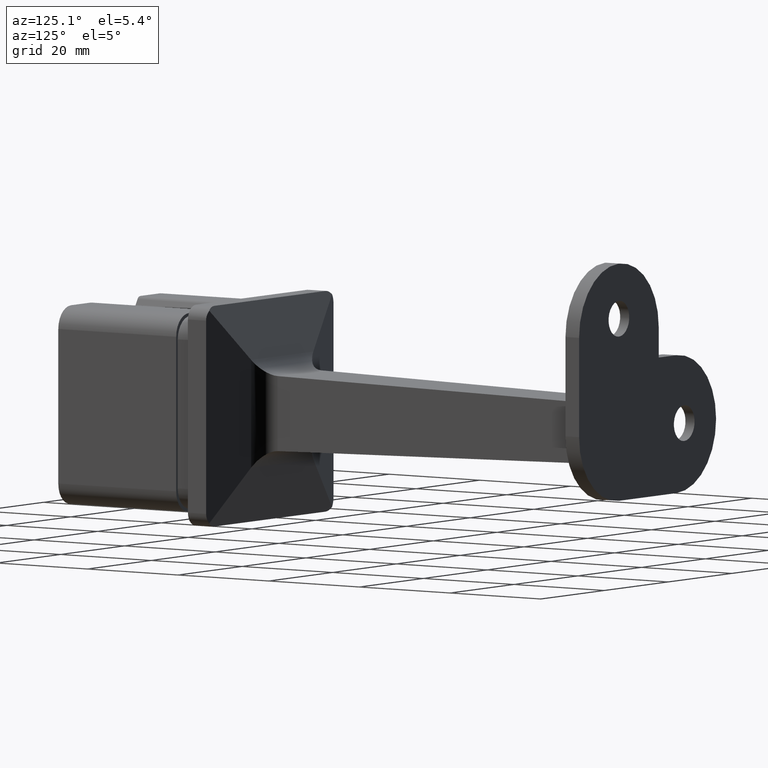
[diagram: clean part render]
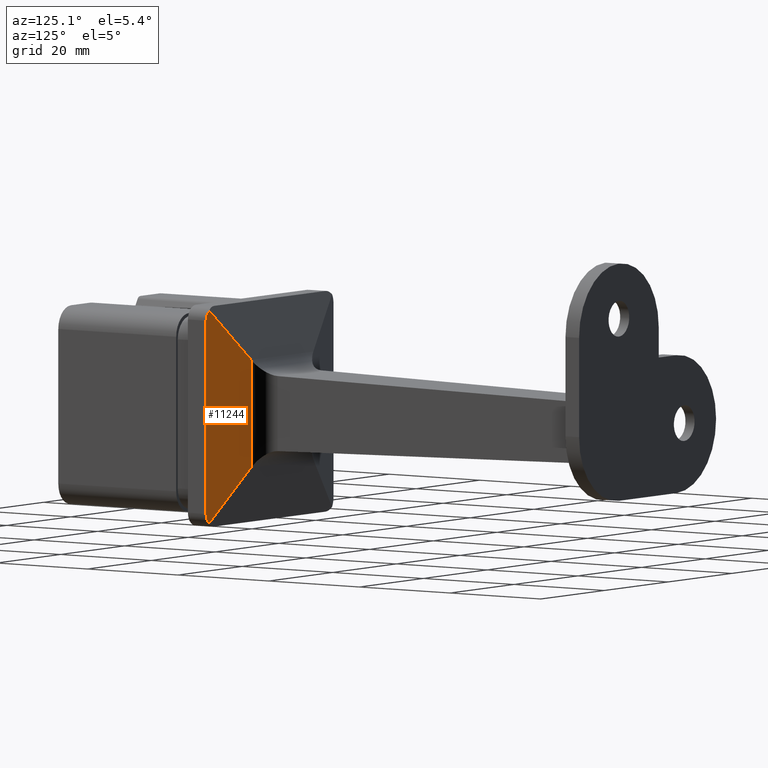
[diagram: same view with one face highlighted and labeled with its STEP entity id]
A machine part, auxiliary view. The second image highlights one B-rep face of the part: STEP entity #11244.
In plain terms, the highlighted planar face has unit normal (-0.2588, -0.9659, 0).
Its self-contained STEP definition (entity closure, byte-faithful):
#136 = CARTESIAN_POINT ( 'NONE',  ( 10.34654349680247876, 6.586635874200677421, -10.34654349680245566 ) ) ;
#549 = EDGE_CURVE ( 'NONE', #9731, #11008, #10338, .T. ) ;
#810 = CARTESIAN_POINT ( 'NONE',  ( 19.99999999999999645, 4.000000000000000000, 17.50000000000000000 ) ) ;
#922 = FACE_OUTER_BOUND ( 'NONE', #7731, .T. ) ;
#1087 = PLANE ( 'NONE',  #13971 ) ;
#1793 = EDGE_CURVE ( 'NONE', #3261, #9731, #13059, .T. ) ;
#1927 = CARTESIAN_POINT ( 'NONE',  ( 19.99999999999999645, 4.000000000000000000, -17.50000000000000355 ) ) ;
#2188 = CARTESIAN_POINT ( 'NONE',  ( -8.960369509592110759, 11.75990762260191502, -8.960369509592107207 ) ) ;
#2193 = DIRECTION ( 'NONE',  ( -0.2588190451025145222, -0.9659258262890699775, 0.000000000000000000 ) ) ;
#2381 = CARTESIAN_POINT ( 'NONE',  ( 19.26776695296639730, 4.196201253624027849, -19.26776695296634401 ) ) ;
#3261 = VERTEX_POINT ( 'NONE', #2381 ) ;
#3461 = VECTOR ( 'NONE', #8776, 1000.000000000000000 ) ;
#3805 = CARTESIAN_POINT ( 'NONE',  ( 19.26776695296637953, 4.196201253624032290, 19.26776695296638309 ) ) ;
#3866 = VECTOR ( 'NONE', #11553, 1000.000000000000000 ) ;
#3947 = CARTESIAN_POINT ( 'NONE',  ( 19.99999999999999645, 4.000000000000000000, 17.50000000000000000 ) ) ;
#4346 = EDGE_CURVE ( 'NONE', #13945, #14247, #8330, .T. ) ;
#4366 = EDGE_CURVE ( 'NONE', #6426, #14247, #6904, .T. ) ;
#5106 = CARTESIAN_POINT ( 'NONE',  ( 9.761795883327712531, 6.743318525007262920, 9.761795883327716083 ) ) ;
#5197 = CARTESIAN_POINT ( 'NONE',  ( 19.26776695296639730, 4.196201253624027849, -19.26776695296634401 ) ) ;
#5345 = CARTESIAN_POINT ( 'NONE',  ( 19.74287394743916124, 4.068896718136675972, -18.79265995849356230 ) ) ;
#6177 = CARTESIAN_POINT ( 'NONE',  ( 19.74287394743915769, 4.068896718136678636, 18.79265995849359072 ) ) ;
#6390 = LINE ( 'NONE', #2188, #3461 ) ;
#6426 = VERTEX_POINT ( 'NONE', #7882 ) ;
#6676 = DIRECTION ( 'NONE',  ( 0.9659258262890699775, -0.2588190451025145222, 0.000000000000000000 ) ) ;
#6726 = CARTESIAN_POINT ( 'NONE',  ( 1.339745962155122871, 9.000000000000001776, -20.00000000000000355 ) ) ;
#6750 = ORIENTED_EDGE ( 'NONE', *, *, #4346, .F. ) ;
#6904 =( BOUNDED_CURVE ( )  B_SPLINE_CURVE ( 3, ( #3805, #6177, #9424, #3947 ),
 .UNSPECIFIED., .F., .F. ) 
 B_SPLINE_CURVE_WITH_KNOTS ( ( 4, 4 ),
 ( 5.497787143782136177, 6.283185307179586232 ),
 .UNSPECIFIED. ) 
 CURVE ( )  GEOMETRIC_REPRESENTATION_ITEM ( )  RATIONAL_B_SPLINE_CURVE ( ( 1.000000000000000000, 0.9492530216741910110, 0.9492530216741910110, 1.000000000000000000 ) ) 
 REPRESENTATION_ITEM ( '' )  );
#7731 = EDGE_LOOP ( 'NONE', ( #6750, #12451, #13010, #11147, #12508, #11934 ) ) ;
#7882 = CARTESIAN_POINT ( 'NONE',  ( 19.26776695296637953, 4.196201253624032290, 19.26776695296638309 ) ) ;
#8330 = LINE ( 'NONE', #9372, #10598 ) ;
#8776 = DIRECTION ( 'NONE',  ( 0.6947465906068663877, -0.1861567878973808821, 0.6947465906068663877 ) ) ;
#8934 = CARTESIAN_POINT ( 'NONE',  ( 9.761795883327733847, 6.743318525007257591, -9.761795883327712531 ) ) ;
#9187 = CARTESIAN_POINT ( 'NONE',  ( 9.761795883327710754, 6.743318525007262920, -20.00000000000000355 ) ) ;
#9372 = CARTESIAN_POINT ( 'NONE',  ( 19.99999999999999645, 4.000000000000000000, -20.00000000000000355 ) ) ;
#9424 = CARTESIAN_POINT ( 'NONE',  ( 20.00000000000000000, 3.999999999999997335, 18.17190275516172804 ) ) ;
#9429 = VECTOR ( 'NONE', #11388, 1000.000000000000000 ) ;
#9731 = VERTEX_POINT ( 'NONE', #8934 ) ;
#10338 = LINE ( 'NONE', #9187, #3866 ) ;
#10598 = VECTOR ( 'NONE', #12765, 1000.000000000000000 ) ;
#11008 = VERTEX_POINT ( 'NONE', #5106 ) ;
#11147 = ORIENTED_EDGE ( 'NONE', *, *, #549, .T. ) ;
#11244 = ADVANCED_FACE ( 'NONE', ( #922 ), #1087, .F. ) ;
#11388 = DIRECTION ( 'NONE',  ( -0.6947465906068676089, 0.1861567878973811596, 0.6947465906068650554 ) ) ;
#11520 =( BOUNDED_CURVE ( )  B_SPLINE_CURVE ( 3, ( #11633, #13075, #5345, #5197 ),
 .UNSPECIFIED., .F., .F. ) 
 B_SPLINE_CURVE_WITH_KNOTS ( ( 4, 4 ),
 ( 0.000000000000000000, 0.7853981633974315146 ),
 .UNSPECIFIED. ) 
 CURVE ( )  GEOMETRIC_REPRESENTATION_ITEM ( )  RATIONAL_B_SPLINE_CURVE ( ( 1.000000000000000000, 0.9492530216741933424, 0.9492530216741933424, 1.000000000000000000 ) ) 
 REPRESENTATION_ITEM ( '' )  );
#11553 = DIRECTION ( 'NONE',  ( 0.000000000000000000, 0.000000000000000000, 1.000000000000000000 ) ) ;
#11633 = CARTESIAN_POINT ( 'NONE',  ( 19.99999999999999645, 4.000000000000000000, -17.50000000000000355 ) ) ;
#11934 = ORIENTED_EDGE ( 'NONE', *, *, #4366, .T. ) ;
#12451 = ORIENTED_EDGE ( 'NONE', *, *, #13894, .T. ) ;
#12508 = ORIENTED_EDGE ( 'NONE', *, *, #13030, .T. ) ;
#12765 = DIRECTION ( 'NONE',  ( -0.000000000000000000, -0.000000000000000000, 1.000000000000000000 ) ) ;
#13010 = ORIENTED_EDGE ( 'NONE', *, *, #1793, .T. ) ;
#13030 = EDGE_CURVE ( 'NONE', #11008, #6426, #6390, .T. ) ;
#13059 = LINE ( 'NONE', #136, #9429 ) ;
#13075 = CARTESIAN_POINT ( 'NONE',  ( 20.00000000000000355, 3.999999999999998224, -18.17190275516171383 ) ) ;
#13894 = EDGE_CURVE ( 'NONE', #13945, #3261, #11520, .T. ) ;
#13945 = VERTEX_POINT ( 'NONE', #1927 ) ;
#13971 = AXIS2_PLACEMENT_3D ( 'NONE', #6726, #2193, #6676 ) ;
#14247 = VERTEX_POINT ( 'NONE', #810 ) ;